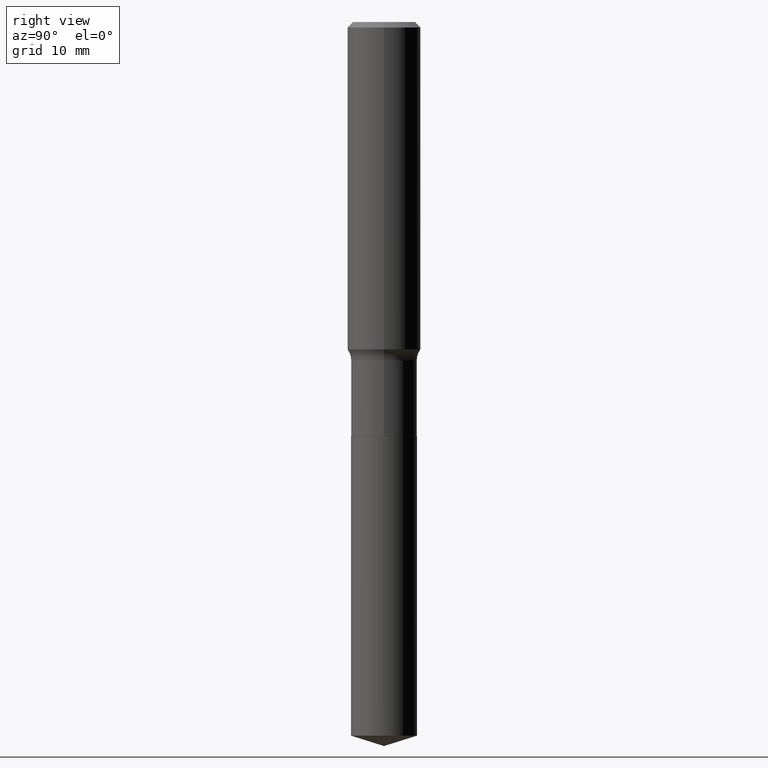
[diagram: clean part render]
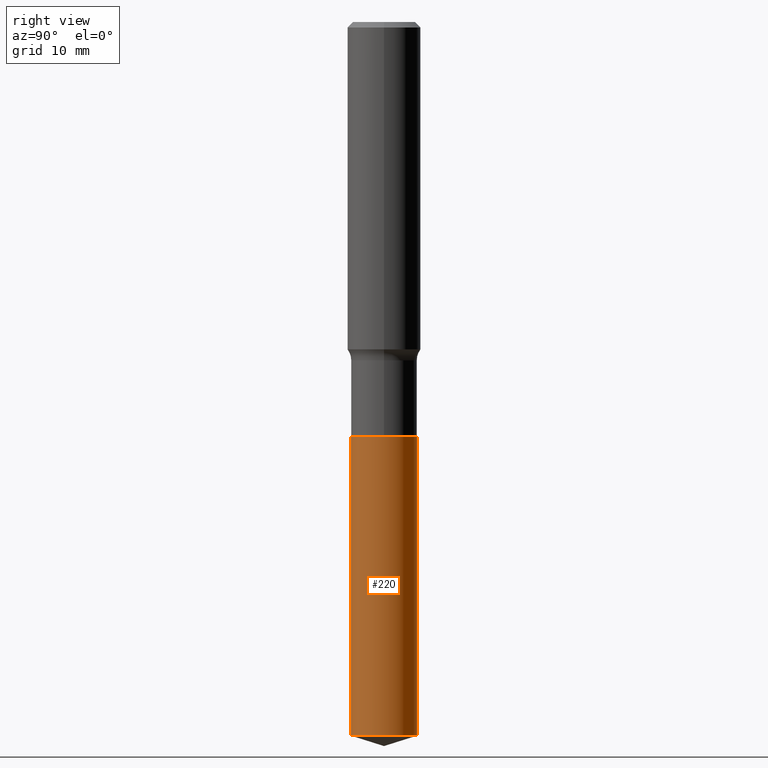
[diagram: same view with one face highlighted and labeled with its STEP entity id]
A machine part, right view. The second image highlights one B-rep face of the part: STEP entity #220.
In plain terms, the highlighted cylindrical surface (edge-blend (fillet) strip) has radius 3.6004 mm, axis along (-0, 0, 1).
Its self-contained STEP definition (entity closure, byte-faithful):
#5 = CARTESIAN_POINT ( 'NONE',  ( 4.351711740606450879E-29, -6.213091042471377326E-15, -1.779499999999999860 ) ) ;
#41 = CARTESIAN_POINT ( 'NONE',  ( 1.007194327940016469E-15, 0.1417499999999892457, -3.065506396676405121 ) ) ;
#58 = VECTOR ( 'NONE', #153, 39.37007874015748143 ) ;
#80 = CARTESIAN_POINT ( 'NONE',  ( 4.351711740606450879E-29, -6.213091042471377326E-15, -1.779499999999999860 ) ) ;
#85 = DIRECTION ( 'NONE',  ( -6.982962677686265133E-15, -1.000000000000000000, 3.854459250319948630E-15 ) ) ;
#93 = CARTESIAN_POINT ( 'NONE',  ( -9.898349595619846349E-16, -0.1417500000000062044, -1.779499999999999416 ) ) ;
#102 = VECTOR ( 'NONE', #319, 39.37007874015748143 ) ;
#116 = CYLINDRICAL_SURFACE ( 'NONE', #257, 0.1417499999999999871 ) ;
#117 = DIRECTION ( 'NONE',  ( -2.445422934702046879E-29, 3.491547029417772777E-15, 1.000000000000000000 ) ) ;
#131 = EDGE_CURVE ( 'NONE', #456, #383, #486, .T. ) ;
#134 = ORIENTED_EDGE ( 'NONE', *, *, #131, .F. ) ;
#153 = DIRECTION ( 'NONE',  ( -2.445422934702046879E-29, 3.491547029417773171E-15, 1.000000000000000000 ) ) ;
#157 = DIRECTION ( 'NONE',  ( -6.982962677686265133E-15, -1.000000000000000000, 3.854459250319948630E-15 ) ) ;
#160 = FACE_OUTER_BOUND ( 'NONE', #304, .T. ) ;
#162 = CIRCLE ( 'NONE', #330, 0.1417499999999999871 ) ;
#164 = ORIENTED_EDGE ( 'NONE', *, *, #447, .T. ) ;
#173 = VERTEX_POINT ( 'NONE', #299 ) ;
#211 = EDGE_CURVE ( 'NONE', #456, #270, #162, .T. ) ;
#220 = ADVANCED_FACE ( 'NONE', ( #160 ), #116, .T. ) ;
#230 = DIRECTION ( 'NONE',  ( -6.982962677686265133E-15, -1.000000000000000000, 3.854459250319948630E-15 ) ) ;
#245 = CIRCLE ( 'NONE', #407, 0.1417499999999999871 ) ;
#257 = AXIS2_PLACEMENT_3D ( 'NONE', #80, #117, #230 ) ;
#267 = EDGE_CURVE ( 'NONE', #383, #173, #245, .T. ) ;
#270 = VERTEX_POINT ( 'NONE', #41 ) ;
#299 = CARTESIAN_POINT ( 'NONE',  ( 1.007194327940016864E-15, 0.1417499999999937699, -1.779500000000000526 ) ) ;
#304 = EDGE_LOOP ( 'NONE', ( #388, #164, #417, #134 ) ) ;
#319 = DIRECTION ( 'NONE',  ( -2.445422934702046879E-29, 3.491547029417773171E-15, 1.000000000000000000 ) ) ;
#330 = AXIS2_PLACEMENT_3D ( 'NONE', #378, #384, #85 ) ;
#354 = LINE ( 'NONE', #459, #102 ) ;
#363 = CARTESIAN_POINT ( 'NONE',  ( -9.898349595619846349E-16, -0.1417500000000062044, -1.779499999999999416 ) ) ;
#378 = CARTESIAN_POINT ( 'NONE',  ( 7.496541277212469307E-29, -1.070324285659913330E-14, -3.065506396676404677 ) ) ;
#383 = VERTEX_POINT ( 'NONE', #93 ) ;
#384 = DIRECTION ( 'NONE',  ( -2.445422934702046879E-29, 3.491547029417772777E-15, 1.000000000000000000 ) ) ;
#388 = ORIENTED_EDGE ( 'NONE', *, *, #211, .T. ) ;
#407 = AXIS2_PLACEMENT_3D ( 'NONE', #5, #454, #157 ) ;
#417 = ORIENTED_EDGE ( 'NONE', *, *, #267, .F. ) ;
#431 = CARTESIAN_POINT ( 'NONE',  ( -9.898349595619528832E-16, -0.1417500000000106453, -3.065506396676404233 ) ) ;
#447 = EDGE_CURVE ( 'NONE', #270, #173, #354, .T. ) ;
#454 = DIRECTION ( 'NONE',  ( -2.445422934702046879E-29, 3.491547029417772777E-15, 1.000000000000000000 ) ) ;
#456 = VERTEX_POINT ( 'NONE', #431 ) ;
#459 = CARTESIAN_POINT ( 'NONE',  ( 1.007194327939985309E-15, 0.1417499999999937699, -1.779500000000000526 ) ) ;
#486 = LINE ( 'NONE', #363, #58 ) ;